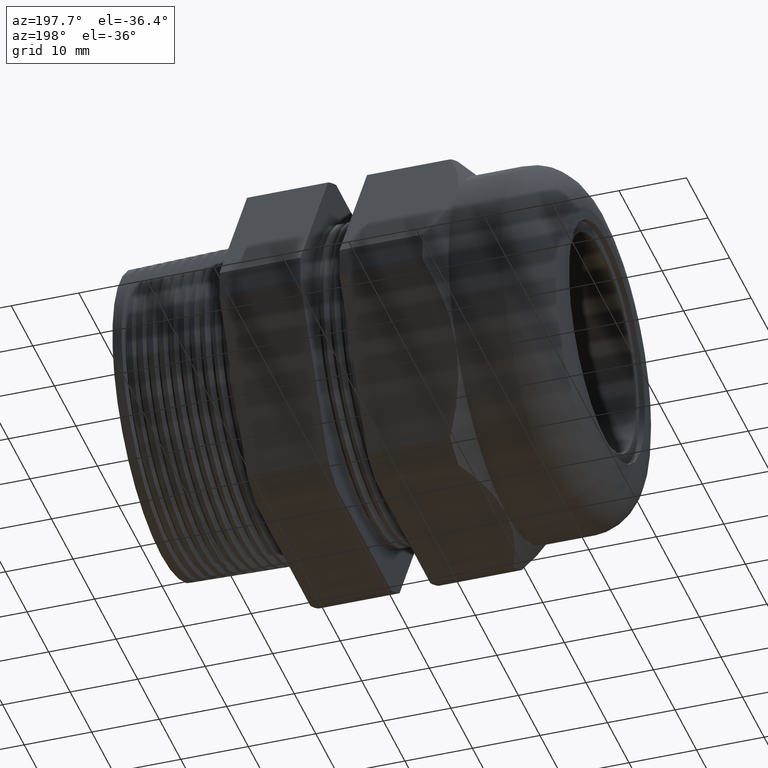
[diagram: clean part render]
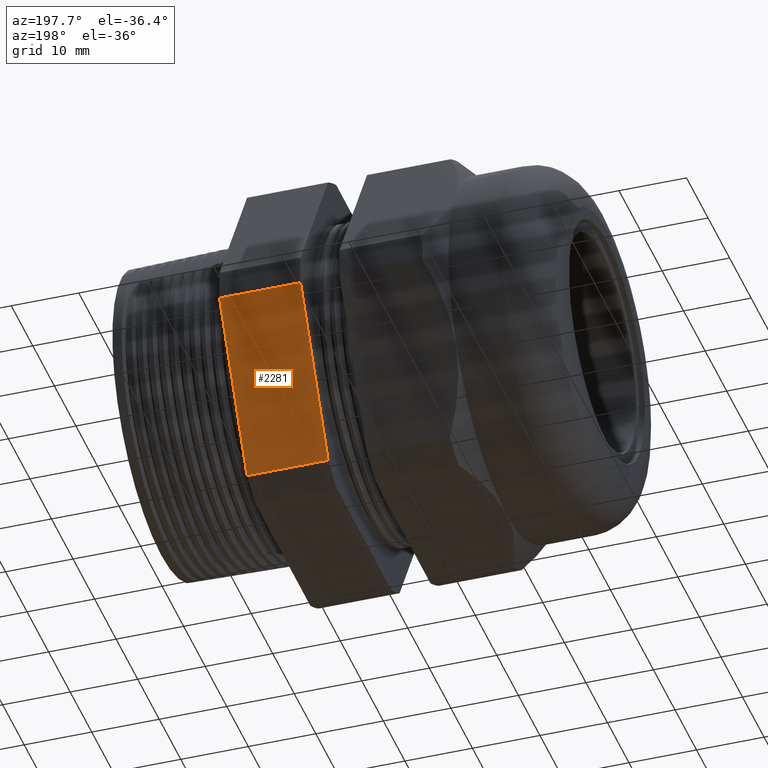
[diagram: same view with one face highlighted and labeled with its STEP entity id]
A machine part, auxiliary view. The second image highlights one B-rep face of the part: STEP entity #2281.
In plain terms, the highlighted planar face has unit normal (0, 0.866, -0.5).
Its self-contained STEP definition (entity closure, byte-faithful):
#88 = VERTEX_POINT ( 'NONE', #3030 ) ;
#105 = ORIENTED_EDGE ( 'NONE', *, *, #108, .F. ) ;
#106 = VERTEX_POINT ( 'NONE', #3054 ) ;
#108 = EDGE_CURVE ( 'NONE', #2176, #106, #3052, .T. ) ;
#109 = ORIENTED_EDGE ( 'NONE', *, *, #3732, .F. ) ;
#110 = ORIENTED_EDGE ( 'NONE', *, *, #111, .T. ) ;
#111 = EDGE_CURVE ( 'NONE', #4200, #106, #3048, .T. ) ;
#114 = EDGE_CURVE ( 'NONE', #88, #2176, #3044, .T. ) ;
#1221 = DIRECTION ( 'NONE',  ( 0.0000000000000000000, 0.4999999999999998300, 0.8660254037844388200 ) ) ;
#1222 = VECTOR ( 'NONE', #1221, 39.37007874015748100 ) ;
#1223 = CARTESIAN_POINT ( 'NONE',  ( -0.3100000000000000000, 1.427496546954738300, 0.3824965469547380600 ) ) ;
#1224 = LINE ( 'NONE', #1223, #1222 ) ;
#2175 = ORIENTED_EDGE ( 'NONE', *, *, #114, .F. ) ;
#2176 = VERTEX_POINT ( 'NONE', #3155 ) ;
#2192 = CARTESIAN_POINT ( 'NONE',  ( -0.3099999999999997200, 0.6532729870224199800, -0.9584979952648857700 ) ) ;
#2280 = EDGE_LOOP ( 'NONE', ( #2175, #109, #110, #105 ) ) ;
#2281 = ADVANCED_FACE ( 'NONE', ( #3152 ), #3147, .T. ) ;
#3030 = CARTESIAN_POINT ( 'NONE',  ( -0.3100000000000000000, 1.156720106887057800, -0.08650200473511399100 ) ) ;
#3041 = DIRECTION ( 'NONE',  ( -1.000000000000000000, 0.0000000000000000000, 0.0000000000000000000 ) ) ;
#3042 = VECTOR ( 'NONE', #3041, 39.37007874015748100 ) ;
#3043 = CARTESIAN_POINT ( 'NONE',  ( 0.4000000000000000800, 1.156720106887057800, -0.08650200473511399100 ) ) ;
#3044 = LINE ( 'NONE', #3043, #3042 ) ;
#3045 = DIRECTION ( 'NONE',  ( -1.000000000000000000, 0.0000000000000000000, 0.0000000000000000000 ) ) ;
#3046 = VECTOR ( 'NONE', #3045, 39.37007874015748100 ) ;
#3047 = CARTESIAN_POINT ( 'NONE',  ( 0.4000000000000000800, 0.6532729870224199800, -0.9584979952648857700 ) ) ;
#3048 = LINE ( 'NONE', #3047, #3046 ) ;
#3049 = DIRECTION ( 'NONE',  ( 0.0000000000000000000, -0.4999999999999998300, -0.8660254037844388200 ) ) ;
#3050 = VECTOR ( 'NONE', #3049, 39.37007874015748100 ) ;
#3051 = CARTESIAN_POINT ( 'NONE',  ( -0.7824400000000001400, 1.427496546954738300, 0.3824965469547381700 ) ) ;
#3052 = LINE ( 'NONE', #3051, #3050 ) ;
#3054 = CARTESIAN_POINT ( 'NONE',  ( -0.7824400000000001400, 0.6532729870224199800, -0.9584979952648856600 ) ) ;
#3143 = DIRECTION ( 'NONE',  ( 0.0000000000000000000, 0.4999999999999998300, 0.8660254037844388200 ) ) ;
#3144 = DIRECTION ( 'NONE',  ( 0.0000000000000000000, 0.8660254037844388200, -0.4999999999999998300 ) ) ;
#3145 = CARTESIAN_POINT ( 'NONE',  ( 0.4000000000000000800, 1.156720106887057800, -0.08650200473511399100 ) ) ;
#3146 = AXIS2_PLACEMENT_3D ( 'NONE', #3145, #3144, #3143 ) ;
#3147 = PLANE ( 'NONE',  #3146 ) ;
#3152 = FACE_OUTER_BOUND ( 'NONE', #2280, .T. ) ;
#3155 = CARTESIAN_POINT ( 'NONE',  ( -0.7824399999999998000, 1.156720106887057800, -0.08650200473511399100 ) ) ;
#3732 = EDGE_CURVE ( 'NONE', #4200, #88, #1224, .T. ) ;
#4200 = VERTEX_POINT ( 'NONE', #2192 ) ;